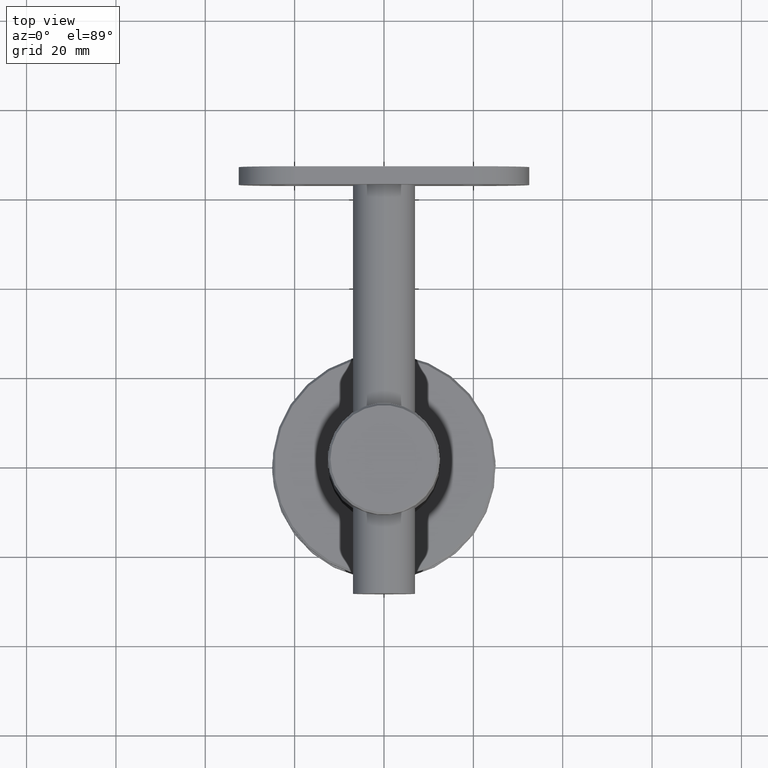
[diagram: clean part render]
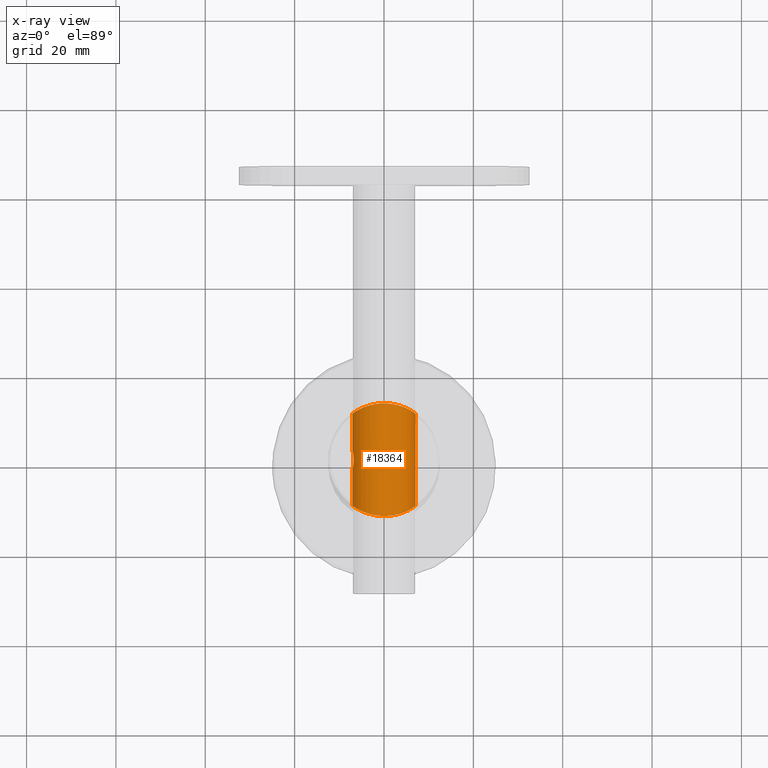
[diagram: x-ray — body ghosted, one internal face saturated and labeled with its STEP entity id]
A machine part, top view, then the same camera in x-ray: the body is ghosted and one INTERNAL B-rep face — a face not visible from any outside direction — is saturated and labeled: STEP entity #18364.
In plain terms, the highlighted cylindrical surface (bore or boss wall) has radius 7.1 mm, axis along (0, 1, 0).
Its self-contained STEP definition (entity closure, byte-faithful):
#28 = CARTESIAN_POINT ( 'NONE',  ( 3.184456486232198900, 12.09553283554605800, 86.36278829441432900 ) ) ;
#129 = CARTESIAN_POINT ( 'NONE',  ( 3.169272846726294300, -12.09956292198341800, 73.62956972911712200 ) ) ;
#163 = CARTESIAN_POINT ( 'NONE',  ( -1.853286471380417800, 12.37060092623068500, 73.12994769052774300 ) ) ;
#196 = CARTESIAN_POINT ( 'NONE',  ( -1.889983813216502100, -12.35839596780823000, 73.15212593721565800 ) ) ;
#223 = CARTESIAN_POINT ( 'NONE',  ( 6.460840631977733400, 10.70133156741372800, 77.04687974980271300 ) ) ;
#228 = CARTESIAN_POINT ( 'NONE',  ( -7.100012148261073200, -2.100041072693855000, 80.13780473094723800 ) ) ;
#291 = CARTESIAN_POINT ( 'NONE',  ( 3.203955867126915700, 12.09038730092472500, 73.64696696464356800 ) ) ;
#295 = CARTESIAN_POINT ( 'NONE',  ( -7.068625278274705400, -1.992006816820353300, 79.32091920459197400 ) ) ;
#325 = CARTESIAN_POINT ( 'NONE',  ( 0.9563567616744069700, -12.46562845003936800, 87.03933869854878900 ) ) ;
#353 = CARTESIAN_POINT ( 'NONE',  ( -6.460839592141698300, 10.70133331722410100, 82.95314374847103500 ) ) ;
#361 = CARTESIAN_POINT ( 'NONE',  ( -6.815154110500383700, 0.6797862604579225600, 78.00835110820875700 ) ) ;
#417 = CARTESIAN_POINT ( 'NONE',  ( -6.859185124894941600, 10.45057995091122500, 78.10713310867888000 ) ) ;
#424 = CARTESIAN_POINT ( 'NONE',  ( -7.039319135053911000, -1.885375750011311300, 79.06479939787233500 ) ) ;
#490 = CARTESIAN_POINT ( 'NONE',  ( -6.901481671827468700, -1.281792034622725600, 78.33095564020750600 ) ) ;
#757 = VERTEX_POINT ( 'NONE', #1304 ) ;
#825 = CARTESIAN_POINT ( 'NONE',  ( -6.782329983125269000, 0.0000000000000000000, 82.09999999999999400 ) ) ;
#1304 = CARTESIAN_POINT ( 'NONE',  ( 0.0000000000000000000, -12.49999999999999500, 87.09999999999999400 ) ) ;
#1523 = CARTESIAN_POINT ( 'NONE',  ( -6.360965238899706400, -10.76253835036409600, 83.18740120694651800 ) ) ;
#1567 = CARTESIAN_POINT ( 'NONE',  ( -6.845144131998220700, 0.9337493638819988100, 81.88600560181058100 ) ) ;
#1599 = CARTESIAN_POINT ( 'NONE',  ( 6.138928330866495000, -10.89252251643727800, 76.40402217390261800 ) ) ;
#1636 = CARTESIAN_POINT ( 'NONE',  ( -6.862828530676045700, 1.054039452433831000, 81.82147171845117800 ) ) ;
#1664 = CARTESIAN_POINT ( 'NONE',  ( -5.625106057332109400, -11.16396342920787900, 84.33819548883795400 ) ) ;
#1732 = CARTESIAN_POINT ( 'NONE',  ( -5.335835450798519700, -11.30507663162559200, 84.68941556034548100 ) ) ;
#1766 = CARTESIAN_POINT ( 'NONE',  ( -4.167489591241087000, 11.78650720189665800, 85.75274438239226500 ) ) ;
#1803 = CARTESIAN_POINT ( 'NONE',  ( 2.310420913900503400, -12.29250456500398400, 73.27031743588233300 ) ) ;
#1833 = CARTESIAN_POINT ( 'NONE',  ( -7.037625937007599800, 10.33066797645802700, 79.03146245814458800 ) ) ;
#1839 = CARTESIAN_POINT ( 'NONE',  ( -6.984222367492753500, -1.668758992133210200, 78.71788995133526600 ) ) ;
#1864 = CARTESIAN_POINT ( 'NONE',  ( 4.167489591241089600, -11.78650720189666100, 85.75274438239227900 ) ) ;
#1896 = CARTESIAN_POINT ( 'NONE',  ( -6.361636014312697500, 10.76083024765457300, 83.16111218485477300 ) ) ;
#1901 = CARTESIAN_POINT ( 'NONE',  ( -6.844861605190449600, -0.9316269468544697800, 78.11297791819363600 ) ) ;
#1930 = CARTESIAN_POINT ( 'NONE',  ( 4.703235346696010800, -11.58298069406304400, 85.32372804176564800 ) ) ;
#1960 = CARTESIAN_POINT ( 'NONE',  ( -5.328153462786819000, 11.30871037991073000, 75.30182161819441000 ) ) ;
#2027 = CARTESIAN_POINT ( 'NONE',  ( -6.023856308707189900, 10.95372243787466000, 83.76503293258986100 ) ) ;
#2032 = CARTESIAN_POINT ( 'NONE',  ( -6.845025548537427600, 0.9328229039679607500, 78.11357054255566400 ) ) ;
#2104 = CARTESIAN_POINT ( 'NONE',  ( -6.786640825994242100, -0.2769015917512484000, 82.08621758769935200 ) ) ;
#2136 = CARTESIAN_POINT ( 'NONE',  ( 6.718676569906835800, -10.54116355741437700, 82.30751951410998400 ) ) ;
#3030 = CARTESIAN_POINT ( 'NONE',  ( 4.704088486941905100, 11.58634715858313200, 85.33724871396501000 ) ) ;
#3138 = CARTESIAN_POINT ( 'NONE',  ( -6.868284871124011200, -10.44457344749546500, 78.14038418871585600 ) ) ;
#3206 = CARTESIAN_POINT ( 'NONE',  ( -5.762524363847187900, -11.09342687341460000, 84.15394023452493900 ) ) ;
#3314 = CARTESIAN_POINT ( 'NONE',  ( 0.4800627823512708700, 12.50000000000000900, 87.09999999999998000 ) ) ;
#3348 = CARTESIAN_POINT ( 'NONE',  ( -5.355958186748809500, -11.29981148896228900, 75.31711136074473200 ) ) ;
#3375 = CARTESIAN_POINT ( 'NONE',  ( -7.099407664463041300, 10.28826570890215400, 79.74334127595248800 ) ) ;
#3381 = CARTESIAN_POINT ( 'NONE',  ( -6.922427031916429400, 1.388825506137059800, 81.58104260893722400 ) ) ;
#3411 = CARTESIAN_POINT ( 'NONE',  ( 6.859185124894938000, -10.45057995091122300, 78.10713310867888000 ) ) ;
#3441 = CARTESIAN_POINT ( 'NONE',  ( -3.600675860934234000, 11.97681173761797200, 86.13622710087231800 ) ) ;
#3475 = CARTESIAN_POINT ( 'NONE',  ( 5.641618946878534000, -11.15821024869228100, 84.33490563956949900 ) ) ;
#3512 = CARTESIAN_POINT ( 'NONE',  ( -1.880117477014193300, 12.35990056820642600, 86.85058647304826700 ) ) ;
#3517 = CARTESIAN_POINT ( 'NONE',  ( -7.022007560448678900, -1.820435298009179600, 78.94426420138614700 ) ) ;
#3580 = CARTESIAN_POINT ( 'NONE',  ( -3.575190798629518200, 11.98464729610662300, 73.84842911643902100 ) ) ;
#3617 = CARTESIAN_POINT ( 'NONE',  ( 6.023856308707191700, -10.95372243787465800, 83.76503293258987500 ) ) ;
#3646 = CARTESIAN_POINT ( 'NONE',  ( 5.355958186748810400, 11.29981148896229300, 75.31711136074470400 ) ) ;
#3651 = CARTESIAN_POINT ( 'NONE',  ( -6.862904813444911800, -1.054516017828586800, 78.17882020022176400 ) ) ;
#3723 = CARTESIAN_POINT ( 'NONE',  ( -6.782329983125269000, -9.486769009248163800E-017, 82.09999999999999400 ) ) ;
#4180 = DIRECTION ( 'NONE',  ( 0.0000000000000000000, 0.0000000000000000000, 1.000000000000000000 ) ) ;
#4316 = DIRECTION ( 'NONE',  ( -0.0000000000000000000, 1.000000000000000000, -0.0000000000000000000 ) ) ;
#4649 = CARTESIAN_POINT ( 'NONE',  ( 7.100939746325477300, 10.28720837068595800, 79.53372672903482500 ) ) ;
#4762 = CARTESIAN_POINT ( 'NONE',  ( 4.693911986042605700, -11.59050969572359200, 74.65372349926248300 ) ) ;
#4839 = CARTESIAN_POINT ( 'NONE',  ( 7.001530568193297600, -10.35528030401141400, 78.79837147415904000 ) ) ;
#4906 = CARTESIAN_POINT ( 'NONE',  ( -4.716523181865119900, -11.58129685567271300, 74.67363696498289000 ) ) ;
#4973 = CARTESIAN_POINT ( 'NONE',  ( 4.342869847070072200, -11.72830940716055200, 74.36410654168391000 ) ) ;
#5005 = CARTESIAN_POINT ( 'NONE',  ( -6.143396690811448100, 10.88689843328966600, 83.56675204116639600 ) ) ;
#5010 = CARTESIAN_POINT ( 'NONE',  ( -7.080168537428641600, 2.032107468005843300, 80.54744595523067100 ) ) ;
#5039 = CARTESIAN_POINT ( 'NONE',  ( -6.025128862940238000, -10.95302243981158300, 76.23699854062238000 ) ) ;
#5079 = CARTESIAN_POINT ( 'NONE',  ( 1.889983813216502100, 12.35839596780823300, 73.15212593721565800 ) ) ;
#5145 = CARTESIAN_POINT ( 'NONE',  ( -7.101124007438878400, 10.28708120721371300, 80.46248176011639000 ) ) ;
#5214 = CARTESIAN_POINT ( 'NONE',  ( -6.356607340930143100, 10.76513610372195600, 76.80371625946746400 ) ) ;
#5221 = CARTESIAN_POINT ( 'NONE',  ( -7.080330242912368500, -2.032668272943457800, 80.54524241719211400 ) ) ;
#5283 = CARTESIAN_POINT ( 'NONE',  ( -3.169272846726296500, 12.09956292198342500, 73.62956972911710800 ) ) ;
#5289 = CARTESIAN_POINT ( 'NONE',  ( -6.803021818836577400, -0.5470709807960408800, 82.03216427896745700 ) ) ;
#5324 = CARTESIAN_POINT ( 'NONE',  ( 6.143396690811446300, -10.88689843328965900, 83.56675204116636700 ) ) ;
#5366 = CARTESIAN_POINT ( 'NONE',  ( -7.099987796811094900, -2.099958741597745900, 79.86094628929859600 ) ) ;
#5997 = ORIENTED_EDGE ( 'NONE', *, *, #13673, .T. ) ;
#6291 = CARTESIAN_POINT ( 'NONE',  ( 6.360965238899708200, 10.76253835036409800, 83.18740120694651800 ) ) ;
#6374 = CARTESIAN_POINT ( 'NONE',  ( 3.588686174087187400, 11.98054828353597000, 86.14357688401587200 ) ) ;
#6379 = CARTESIAN_POINT ( 'NONE',  ( -6.782329983125269000, -9.486769009248163800E-017, 82.09999999999999400 ) ) ;
#6410 = CARTESIAN_POINT ( 'NONE',  ( -5.642930842882246400, -11.15754655068283600, 75.66678379310434400 ) ) ;
#6445 = CARTESIAN_POINT ( 'NONE',  ( -7.080227135845427200, 2.032309671876054000, 79.45349365603627200 ) ) ;
#6476 = CARTESIAN_POINT ( 'NONE',  ( 7.086570340510783200, -10.29715497009005700, 79.50324592782914100 ) ) ;
#6512 = CARTESIAN_POINT ( 'NONE',  ( -7.025011679384226300, 1.833352615866390200, 78.93922856770291200 ) ) ;
#6539 = CARTESIAN_POINT ( 'NONE',  ( -3.203955867126916600, -12.09038730092472300, 73.64696696464361000 ) ) ;
#6572 = CARTESIAN_POINT ( 'NONE',  ( -5.354227270072692900, 11.30066879763865200, 84.68499769419686600 ) ) ;
#6613 = CARTESIAN_POINT ( 'NONE',  ( -4.704088486941909500, -11.58634715858313100, 85.33724871396499600 ) ) ;
#6644 = CARTESIAN_POINT ( 'NONE',  ( 6.025128862940238000, 10.95302243981158900, 76.23699854062239500 ) ) ;
#6650 = CARTESIAN_POINT ( 'NONE',  ( -7.095936194997684700, 2.086380772200740800, 80.27599476229552500 ) ) ;
#6677 = CARTESIAN_POINT ( 'NONE',  ( -3.588686174087189200, -11.98054828353597200, 86.14357688401588600 ) ) ;
#6710 = CARTESIAN_POINT ( 'NONE',  ( -2.552512006404772400, 12.23860169328429000, 86.62942539281218000 ) ) ;
#6773 = CARTESIAN_POINT ( 'NONE',  ( 3.605539113816680400, 11.97534002329462400, 73.86663764570010900 ) ) ;
#6812 = CARTESIAN_POINT ( 'NONE',  ( 6.856596184691691900, -10.45197745669437200, 81.85805003137291200 ) ) ;
#6851 = CARTESIAN_POINT ( 'NONE',  ( 4.716523181865117200, 11.58129685567271500, 74.67363696498284800 ) ) ;
#6955 = CARTESIAN_POINT ( 'NONE',  ( 6.915009424120476900, -10.41324950567328300, 81.62736897290308500 ) ) ;
#7656 = ORIENTED_EDGE ( 'NONE', *, *, #18132, .T. ) ;
#7721 = B_SPLINE_CURVE_WITH_KNOTS ( 'NONE', 3,
 ( #15967, #3314, #9427, #20785, #19232, #28, #6374, #17691, #3030, #14354, #14280, #8111, #20720, #19164, #6291, #9570, #9640, #11247, #20650, #4649, #17482, #14565, #7823, #223, #11445, #8435, #6644, #13276, #3646, #6851, #8243, #6773, #291, #11507, #19371, #5079, #13211, #19434, #9774, #9847, #14832, #163, #8180, #5283, #3580, #10034, #17821, #19498, #1960, #19635, #9905, #17888, #5214, #11581, #417, #16438, #1833, #16244, #3375, #5145, #18013, #14639, #8375, #13144, #11649, #353, #1896, #5005, #2027, #14905, #6572, #17756, #13069, #11379, #1766, #3441, #14701, #6710, #13001, #3512, #16305, #17952, #8308, #14766, #16376, #19566 ),
 .UNSPECIFIED., .T., .F.,
 ( 4, 2, 2, 2, 2, 2, 2, 2, 2, 2, 2, 2, 2, 2, 2, 2, 2, 2, 2, 2, 2, 2, 2, 2, 2, 2, 2, 2, 2, 2, 2, 2, 2, 2, 2, 2, 2, 2, 2, 2, 2, 2, 4 ),
 ( 0.0000000000000000000, 0.001417821200762001300, 0.002835642401524002600, 0.004253463602286003900, 0.005671284803048006100, 0.006380195403429008900, 0.007089106003810008300, 0.008506927204572009600, 0.009924748405334008300, 0.01134256960609600900, 0.01276039080685800900, 0.01417821200762001000, 0.01488712260800102500, 0.01559603320838204300, 0.01701385440914408200, 0.01843167560990611700, 0.01984949681066815200, 0.02055840741104917800, 0.02126731801143020400, 0.02268513921219226700, 0.02410296041295432700, 0.02552078161371639300, 0.02693860281447845200, 0.02835642401524051200, 0.02906533461562153100, 0.02977424521600254700, 0.03119206641676460600, 0.03260988761752667300, 0.03331879821790768200, 0.03402770881828869100, 0.03544553001905066700, 0.03615444061943166200, 0.03686335121981265700, 0.03757226182019364500, 0.03828117242057463300, 0.03969899362133665100, 0.04040790422171763900, 0.04111681482209863400, 0.04253463602286063800, 0.04324354662324163300, 0.04395245722362262800, 0.04466136782400362300, 0.04537027842438462500 ),
 .UNSPECIFIED. ) ;
#7823 = CARTESIAN_POINT ( 'NONE',  ( 6.728327433932026500, 10.53676638689296600, 77.68631603766708300 ) ) ;
#8004 = CARTESIAN_POINT ( 'NONE',  ( 5.756534759608706900, -11.09653907833739300, 75.83776719106902000 ) ) ;
#8075 = CARTESIAN_POINT ( 'NONE',  ( 5.618916498746309600, -11.16709125779064800, 75.65375140950391100 ) ) ;
#8111 = CARTESIAN_POINT ( 'NONE',  ( 5.625106057332099700, 11.16396342920788200, 84.33819548883796800 ) ) ;
#8147 = CARTESIAN_POINT ( 'NONE',  ( -1.662763347459026900, -12.39107304167199400, 73.09346473338199200 ) ) ;
#8180 = CARTESIAN_POINT ( 'NONE',  ( -2.310420913900503900, 12.29250456500398600, 73.27031743588234700 ) ) ;
#8185 = CARTESIAN_POINT ( 'NONE',  ( -6.901460717921716900, 1.281695660772273600, 81.66913589068170200 ) ) ;
#8211 = CARTESIAN_POINT ( 'NONE',  ( -2.328163915045303100, -12.28911430792146800, 86.72350286509373500 ) ) ;
#8243 = CARTESIAN_POINT ( 'NONE',  ( 4.360704997454968500, 11.72147315400053800, 74.37840787716004300 ) ) ;
#8275 = CARTESIAN_POINT ( 'NONE',  ( -6.144291566700927900, -10.88638881761785300, 76.43483257053729600 ) ) ;
#8308 = CARTESIAN_POINT ( 'NONE',  ( -0.9563567616744034200, 12.46562845003937300, 87.03933869854881800 ) ) ;
#8375 = CARTESIAN_POINT ( 'NONE',  ( -6.856596184691688300, 10.45197745669436900, 81.85805003137291200 ) ) ;
#8381 = CARTESIAN_POINT ( 'NONE',  ( -6.984398384501084900, 1.678602553536193500, 78.70869074257588200 ) ) ;
#8407 = CARTESIAN_POINT ( 'NONE',  ( 4.350185171942295700, -11.72014306462431100, 85.61590526619762900 ) ) ;
#8435 = CARTESIAN_POINT ( 'NONE',  ( 6.144291566700926100, 10.88638881761785400, 76.43483257053731000 ) ) ;
#8471 = CARTESIAN_POINT ( 'NONE',  ( 0.4817035191452519500, -12.49297693224775000, 87.08765612089989400 ) ) ;
#8504 = CARTESIAN_POINT ( 'NONE',  ( -6.786669186077234400, 0.2778081737557134800, 77.91387212255020200 ) ) ;
#8534 = CARTESIAN_POINT ( 'NONE',  ( -3.523657060577889400E-016, -12.49999999999999300, 87.10000000000000900 ) ) ;
#9427 = CARTESIAN_POINT ( 'NONE',  ( 0.9502310381377845300, 12.47246097537638400, 87.05182805586086700 ) ) ;
#9500 = CARTESIAN_POINT ( 'NONE',  ( -7.099973389949184400, 2.099910032668056600, 80.13920638788565000 ) ) ;
#9570 = CARTESIAN_POINT ( 'NONE',  ( 6.718937078870830200, 10.54276979942761500, 82.34036103084744700 ) ) ;
#9611 = CARTESIAN_POINT ( 'NONE',  ( 0.4559300718457330300, -12.50090470285381400, 72.89840720695660500 ) ) ;
#9640 = CARTESIAN_POINT ( 'NONE',  ( 6.860853880118836100, 10.44947904693423300, 81.88678518319302700 ) ) ;
#9678 = CARTESIAN_POINT ( 'NONE',  ( 7.101124007438881900, -10.28708120721371700, 80.46248176011640400 ) ) ;
#9742 = CARTESIAN_POINT ( 'NONE',  ( 0.9286070184467023500, -12.47413832801099400, 72.94521591505608200 ) ) ;
#9774 = CARTESIAN_POINT ( 'NONE',  ( 0.5042569077676455300, 12.49904858744114800, 72.90167502860092000 ) ) ;
#9810 = CARTESIAN_POINT ( 'NONE',  ( -6.144214611907535200, -10.88952956567641000, 83.58695593317949600 ) ) ;
#9847 = CARTESIAN_POINT ( 'NONE',  ( -0.4559300718457330900, 12.50090470285381800, 72.89840720695659100 ) ) ;
#9852 = CARTESIAN_POINT ( 'NONE',  ( -6.963506826189996200, -1.580948237789726400, 78.61097943035122200 ) ) ;
#9905 = CARTESIAN_POINT ( 'NONE',  ( -5.756534759608702400, 11.09653907833739200, 75.83776719106900500 ) ) ;
#10004 = CARTESIAN_POINT ( 'NONE',  ( 6.639358407684966300, -10.59150144861526900, 82.52634640713077400 ) ) ;
#10034 = CARTESIAN_POINT ( 'NONE',  ( -4.342869847070072200, 11.72830940716054800, 74.36410654168396700 ) ) ;
#10039 = CARTESIAN_POINT ( 'NONE',  ( -6.922196061172677200, 1.387721061360569700, 78.41790430484812200 ) ) ;
#10112 = CARTESIAN_POINT ( 'NONE',  ( -6.800103364420360600, -0.5519051208141820800, 77.95536674219060600 ) ) ;
#10142 = CARTESIAN_POINT ( 'NONE',  ( 6.361636014312694900, -10.76083024765457300, 83.16111218485477300 ) ) ;
#10540 = B_SPLINE_CURVE_WITH_KNOTS ( 'NONE', 3,
 ( #6379, #17555, #17826, #17761, #13007, #1567, #1636, #8185, #3381, #12870, #14501, #14644, #5010, #6650, #9500, #14432, #12796, #6445, #17696, #6512, #8381, #10039, #14838, #18090, #2032, #361, #16310, #8504, #19705, #11719, #10112, #1901, #3651, #490, #18019, #9852, #1839, #3517, #424, #295, #14770, #17956, #5366, #228, #13215, #5221, #11513, #11655, #14978, #11587, #13283, #13360, #19642, #14911, #5289, #2104, #16444, #3723 ),
 .UNSPECIFIED., .T., .F.,
 ( 4, 2, 2, 2, 2, 2, 2, 2, 2, 2, 2, 2, 2, 2, 2, 2, 2, 2, 2, 2, 2, 2, 2, 2, 2, 2, 2, 2, 4 ),
 ( 0.0000000000000000000, 0.0004126049983607103500, 0.0008252099967214207100, 0.001237814995082131100, 0.001650419993442841400, 0.002475629990164292200, 0.002888234988525017400, 0.003300839986885742300, 0.003713444985246467100, 0.004126049983607191900, 0.004951259980328640700, 0.005363864978689366000, 0.005776469977050090400, 0.006189074975410814800, 0.006601679973771538300, 0.007426889970492987100, 0.007839494968853720100, 0.008252099967214451500, 0.008664704965575184500, 0.009077309963935915900, 0.009489914962296649000, 0.009902519960657380300, 0.01031512495901811300, 0.01072772995737884600, 0.01155293995410027300, 0.01196554495246098500, 0.01237814995082169900, 0.01279075494918241100, 0.01320335994754312700 ),
 .UNSPECIFIED. ) ;
#10578 = CARTESIAN_POINT ( 'NONE',  ( 0.0000000000000000000, -25.00000000000000000, 80.00000000000000000 ) ) ;
#10586 = FACE_BOUND ( 'NONE', #16701, .T. ) ;
#11151 = CARTESIAN_POINT ( 'NONE',  ( -7.100939746325477300, -10.28720837068595800, 79.53372672903482500 ) ) ;
#11218 = CARTESIAN_POINT ( 'NONE',  ( -4.352464271525047200, -11.72468594015717100, 85.62834435256026200 ) ) ;
#11247 = CARTESIAN_POINT ( 'NONE',  ( 7.049804425350002300, 10.32294463227303900, 80.96515897974055100 ) ) ;
#11281 = CARTESIAN_POINT ( 'NONE',  ( -0.9502310381377858700, -12.47246097537638400, 87.05182805586086700 ) ) ;
#11379 = CARTESIAN_POINT ( 'NONE',  ( -4.350185171942293000, 11.72014306462431000, 85.61590526619761500 ) ) ;
#11412 = CARTESIAN_POINT ( 'NONE',  ( -2.561768883189977400, -12.23664740688127700, 73.37418452748443100 ) ) ;
#11445 = CARTESIAN_POINT ( 'NONE',  ( 6.361835953135452500, 10.76070739544479300, 76.83933852459222200 ) ) ;
#11507 = CARTESIAN_POINT ( 'NONE',  ( 2.561768883189979200, 12.23664740688127500, 73.37418452748443100 ) ) ;
#11513 = CARTESIAN_POINT ( 'NONE',  ( -7.068582600874122200, -1.991837313649669400, 80.67923718489723200 ) ) ;
#11571 = FACE_OUTER_BOUND ( 'NONE', #11670, .T. ) ;
#11581 = CARTESIAN_POINT ( 'NONE',  ( -6.716677798686967000, 10.54423309525403600, 77.65288986509251900 ) ) ;
#11587 = CARTESIAN_POINT ( 'NONE',  ( -6.922504623154175400, -1.389211259960196500, 81.58070502027477700 ) ) ;
#11649 = CARTESIAN_POINT ( 'NONE',  ( -6.639358407684963700, 10.59150144861526100, 82.52634640713076000 ) ) ;
#11655 = CARTESIAN_POINT ( 'NONE',  ( -7.025216620455511300, -1.834091644109289200, 81.05887864771446500 ) ) ;
#11670 = EDGE_LOOP ( 'NONE', ( #7656 ) ) ;
#11682 = CARTESIAN_POINT ( 'NONE',  ( 2.329605151280716800, -12.28311538749230200, 86.71105927489931300 ) ) ;
#11719 = CARTESIAN_POINT ( 'NONE',  ( -6.782293266518073500, -0.2741545567685147500, 77.89988141706125200 ) ) ;
#12757 = CARTESIAN_POINT ( 'NONE',  ( -6.718937078870830200, -10.54276979942761200, 82.34036103084744700 ) ) ;
#12796 = CARTESIAN_POINT ( 'NONE',  ( -7.095902045785402700, 2.086262723297444200, 79.72348664449417300 ) ) ;
#12828 = CARTESIAN_POINT ( 'NONE',  ( -7.053651354597871400, -10.32029331651082200, 79.06324464011741800 ) ) ;
#12870 = CARTESIAN_POINT ( 'NONE',  ( -6.984189384111908300, 1.677576361987595600, 81.29223280440783100 ) ) ;
#12901 = CARTESIAN_POINT ( 'NONE',  ( -7.049804425350002300, -10.32294463227304100, 80.96515897974057900 ) ) ;
#12968 = CARTESIAN_POINT ( 'NONE',  ( -6.860853880118836100, -10.44947904693423100, 81.88678518319302700 ) ) ;
#13001 = CARTESIAN_POINT ( 'NONE',  ( -2.329605151280716800, 12.28311538749230200, 86.71105927489931300 ) ) ;
#13007 = CARTESIAN_POINT ( 'NONE',  ( -6.815154023665759700, 0.6798632605222576500, 81.99165532951938900 ) ) ;
#13038 = CARTESIAN_POINT ( 'NONE',  ( 5.175251503206552300, -11.37969477022132700, 75.13398084494915000 ) ) ;
#13069 = CARTESIAN_POINT ( 'NONE',  ( -4.703235346696010000, 11.58298069406303900, 85.32372804176566200 ) ) ;
#13080 = VERTEX_POINT ( 'NONE', #825 ) ;
#13096 = FACE_OUTER_BOUND ( 'NONE', #17114, .T. ) ;
#13111 = CARTESIAN_POINT ( 'NONE',  ( 3.600675860934234000, -11.97681173761797200, 86.13622710087233300 ) ) ;
#13144 = CARTESIAN_POINT ( 'NONE',  ( -6.718676569906834900, 10.54116355741437700, 82.30751951410997000 ) ) ;
#13177 = CARTESIAN_POINT ( 'NONE',  ( 2.552512006404772400, -12.23860169328429000, 86.62942539281218000 ) ) ;
#13211 = CARTESIAN_POINT ( 'NONE',  ( 1.662763347459024000, 12.39107304167199600, 73.09346473338197800 ) ) ;
#13215 = CARTESIAN_POINT ( 'NONE',  ( -7.095979874710622900, -2.086526860941310800, 80.27465480135414600 ) ) ;
#13276 = CARTESIAN_POINT ( 'NONE',  ( 5.642930842882249100, 11.15754655068284000, 75.66678379310440100 ) ) ;
#13283 = CARTESIAN_POINT ( 'NONE',  ( -6.901553104244090500, -1.282197196202733200, 81.66875749540859900 ) ) ;
#13360 = CARTESIAN_POINT ( 'NONE',  ( -6.862889578469284000, -1.054441921355176800, 81.82124503099424800 ) ) ;
#13673 = EDGE_CURVE ( 'NONE', #13080, #13080, #10540, .T. ) ;
#14280 = CARTESIAN_POINT ( 'NONE',  ( 5.335835450798510000, 11.30507663162559800, 84.68941556034549500 ) ) ;
#14354 = CARTESIAN_POINT ( 'NONE',  ( 5.183621414992734000, 11.37587540671378300, 84.85708113046858600 ) ) ;
#14395 = CARTESIAN_POINT ( 'NONE',  ( -4.360704997454967600, -11.72147315400054200, 74.37840787716005800 ) ) ;
#14432 = CARTESIAN_POINT ( 'NONE',  ( -7.100026348053462200, 2.100089081531272900, 79.86352138130365600 ) ) ;
#14463 = CARTESIAN_POINT ( 'NONE',  ( 6.356607340930142200, -10.76513610372195400, 76.80371625946746400 ) ) ;
#14501 = CARTESIAN_POINT ( 'NONE',  ( -7.025138138096719900, 1.833784230723154000, 81.05923147149512400 ) ) ;
#14531 = CARTESIAN_POINT ( 'NONE',  ( -6.728327433932022900, -10.53676638689296600, 77.68631603766704100 ) ) ;
#14565 = CARTESIAN_POINT ( 'NONE',  ( 6.868284871124011200, 10.44457344749546500, 78.14038418871585600 ) ) ;
#14601 = CARTESIAN_POINT ( 'NONE',  ( 3.575190798629522600, -11.98464729610662800, 73.84842911643905000 ) ) ;
#14639 = CARTESIAN_POINT ( 'NONE',  ( -6.915009424120472500, 10.41324950567328100, 81.62736897290307100 ) ) ;
#14644 = CARTESIAN_POINT ( 'NONE',  ( -7.068441622166317600, 1.991335394239306800, 80.68063744123676900 ) ) ;
#14669 = CARTESIAN_POINT ( 'NONE',  ( 1.853286471380416900, -12.37060092623069200, 73.12994769052775700 ) ) ;
#14701 = CARTESIAN_POINT ( 'NONE',  ( -3.198048903789800800, 12.09203204625984400, 86.35616846345202200 ) ) ;
#14736 = CARTESIAN_POINT ( 'NONE',  ( 1.652301775859467600, -12.39249494266610600, 86.90908524717154600 ) ) ;
#14741 = AXIS2_PLACEMENT_3D ( 'NONE', #10578, #4316, #4180 ) ;
#14766 = CARTESIAN_POINT ( 'NONE',  ( -0.4817035191452535600, 12.49297693224775000, 87.08765612089992200 ) ) ;
#14770 = CARTESIAN_POINT ( 'NONE',  ( -7.080125291145912500, -2.031955190868508100, 79.45227603742151200 ) ) ;
#14832 = CARTESIAN_POINT ( 'NONE',  ( -0.9286070184467031300, 12.47413832801099100, 72.94521591505606800 ) ) ;
#14838 = CARTESIAN_POINT ( 'NONE',  ( -6.901626495669850300, 1.282551141199091100, 78.33155777678544500 ) ) ;
#14905 = CARTESIAN_POINT ( 'NONE',  ( -5.641618946878540300, 11.15821024869227400, 84.33490563956949900 ) ) ;
#14911 = CARTESIAN_POINT ( 'NONE',  ( -6.815287221516177500, -0.6811291103105851000, 81.99119703556324600 ) ) ;
#14942 = CARTESIAN_POINT ( 'NONE',  ( 3.198048903789800800, -12.09203204625984400, 86.35616846345202200 ) ) ;
#14978 = CARTESIAN_POINT ( 'NONE',  ( -6.984273363899498000, -1.677922849988365800, 81.29178947711110900 ) ) ;
#15760 = EDGE_CURVE ( 'NONE', #18059, #18059, #7721, .T. ) ;
#15967 = CARTESIAN_POINT ( 'NONE',  ( 1.626303258728256700E-016, 12.50000000000000900, 87.09999999999999400 ) ) ;
#16010 = CARTESIAN_POINT ( 'NONE',  ( -1.872139394921788600, -12.36771263791769500, 86.86486067165593300 ) ) ;
#16075 = CARTESIAN_POINT ( 'NONE',  ( 5.328153462786819000, -11.30871037991072600, 75.30182161819438100 ) ) ;
#16145 = CARTESIAN_POINT ( 'NONE',  ( -3.605539113816680800, -11.97534002329462800, 73.86663764570012300 ) ) ;
#16213 = CARTESIAN_POINT ( 'NONE',  ( -0.4800627823512705300, -12.49999999999999600, 87.09999999999998000 ) ) ;
#16244 = CARTESIAN_POINT ( 'NONE',  ( -7.086570340510785800, 10.29715497009006100, 79.50324592782914100 ) ) ;
#16276 = CARTESIAN_POINT ( 'NONE',  ( -6.361835953135453400, -10.76070739544479300, 76.83933852459222200 ) ) ;
#16305 = CARTESIAN_POINT ( 'NONE',  ( -1.652301775859467400, 12.39249494266610100, 86.90908524717156100 ) ) ;
#16310 = CARTESIAN_POINT ( 'NONE',  ( -6.803156909013575100, 0.5488557814347441200, 77.96828539561673200 ) ) ;
#16376 = CARTESIAN_POINT ( 'NONE',  ( -0.2400313911756351600, 12.50000000000000900, 87.09999999999999400 ) ) ;
#16410 = CARTESIAN_POINT ( 'NONE',  ( 4.872955847900103200, -11.51238539737940400, 85.16875609484240800 ) ) ;
#16438 = CARTESIAN_POINT ( 'NONE',  ( -7.001530568193298400, 10.35528030401141600, 78.79837147415901200 ) ) ;
#16444 = CARTESIAN_POINT ( 'NONE',  ( -6.782329983125271700, -0.1395805940375227600, 82.10000000000000900 ) ) ;
#16472 = CARTESIAN_POINT ( 'NONE',  ( 6.460839592141696600, -10.70133331722410500, 82.95314374847106400 ) ) ;
#16534 = CARTESIAN_POINT ( 'NONE',  ( 1.880117477014193300, -12.35990056820642600, 86.85058647304826700 ) ) ;
#16701 = EDGE_LOOP ( 'NONE', ( #5997 ) ) ;
#17114 = EDGE_LOOP ( 'NONE', ( #18357 ) ) ;
#17299 = CARTESIAN_POINT ( 'NONE',  ( 0.0000000000000000000, 12.50000000000000900, 87.09999999999999400 ) ) ;
#17482 = CARTESIAN_POINT ( 'NONE',  ( 7.053651354597871400, 10.32029331651082200, 79.06324464011741800 ) ) ;
#17555 = CARTESIAN_POINT ( 'NONE',  ( -6.782329983125267200, 0.1395805940375211300, 82.09999999999998000 ) ) ;
#17588 = CARTESIAN_POINT ( 'NONE',  ( -0.5042569077676458700, -12.49904858744115200, 72.90167502860092000 ) ) ;
#17662 = CARTESIAN_POINT ( 'NONE',  ( 7.099407664463043100, -10.28826570890215900, 79.74334127595248800 ) ) ;
#17691 = CARTESIAN_POINT ( 'NONE',  ( 4.352464271525046300, 11.72468594015717100, 85.62834435256026200 ) ) ;
#17696 = CARTESIAN_POINT ( 'NONE',  ( -7.068737760408320800, 1.992398480494621300, 79.32217055512235500 ) ) ;
#17725 = CARTESIAN_POINT ( 'NONE',  ( -2.339435591207807100, -12.28124712014009600, 73.29235815591162900 ) ) ;
#17756 = CARTESIAN_POINT ( 'NONE',  ( -4.872955847900104900, 11.51238539737940100, 85.16875609484242200 ) ) ;
#17761 = CARTESIAN_POINT ( 'NONE',  ( -6.802950190174099600, 0.5460881874451503100, 82.03240237488822100 ) ) ;
#17788 = CARTESIAN_POINT ( 'NONE',  ( 6.716677798686966100, -10.54423309525403800, 77.65288986509250400 ) ) ;
#17821 = CARTESIAN_POINT ( 'NONE',  ( -4.693911986042607500, 11.59050969572359500, 74.65372349926244100 ) ) ;
#17826 = CARTESIAN_POINT ( 'NONE',  ( -6.786638429700330400, 0.2766625995010880700, 82.08622374829639100 ) ) ;
#17856 = CARTESIAN_POINT ( 'NONE',  ( -3.184456486232202000, -12.09553283554605900, 86.36278829441434400 ) ) ;
#17888 = CARTESIAN_POINT ( 'NONE',  ( -6.138928330866495900, 10.89252251643727700, 76.40402217390263200 ) ) ;
#17920 = CARTESIAN_POINT ( 'NONE',  ( 1.190421084666685800, -12.44535775715966400, 87.00346041270835000 ) ) ;
#17952 = CARTESIAN_POINT ( 'NONE',  ( -1.190421084666685800, 12.44535775715966800, 87.00346041270837800 ) ) ;
#17956 = CARTESIAN_POINT ( 'NONE',  ( -7.095814792507050100, -2.085966281830894600, 79.72145358026939700 ) ) ;
#17984 = CARTESIAN_POINT ( 'NONE',  ( 7.054202409483235800, -10.31991815754176800, 80.93325709459465100 ) ) ;
#18013 = CARTESIAN_POINT ( 'NONE',  ( -7.054202409483233200, 10.31991815754175500, 80.93325709459463700 ) ) ;
#18019 = CARTESIAN_POINT ( 'NONE',  ( -6.922061004247122900, -1.387046703861995800, 78.41731970544162800 ) ) ;
#18059 = VERTEX_POINT ( 'NONE', #17299 ) ;
#18090 = CARTESIAN_POINT ( 'NONE',  ( -6.863097567920424200, 1.055744936456857600, 78.17954964057193500 ) ) ;
#18119 = CARTESIAN_POINT ( 'NONE',  ( 5.354227270072694700, -11.30066879763864500, 84.68499769419686600 ) ) ;
#18132 = EDGE_CURVE ( 'NONE', #757, #757, #20436, .T. ) ;
#18357 = ORIENTED_EDGE ( 'NONE', *, *, #15760, .T. ) ;
#18364 = ADVANCED_FACE ( 'NONE', ( #10586, #11571, #13096 ), #20347, .F. ) ;
#19164 = CARTESIAN_POINT ( 'NONE',  ( 6.144214611907544000, 10.88952956567640500, 83.58695593317942500 ) ) ;
#19202 = CARTESIAN_POINT ( 'NONE',  ( -6.460840631977733400, -10.70133156741373000, 77.04687974980271300 ) ) ;
#19232 = CARTESIAN_POINT ( 'NONE',  ( 2.328163915045302600, 12.28911430792146800, 86.72350286509372100 ) ) ;
#19266 = CARTESIAN_POINT ( 'NONE',  ( 7.037625937007606000, -10.33066797645803400, 79.03146245814461700 ) ) ;
#19336 = CARTESIAN_POINT ( 'NONE',  ( -3.523657060577889400E-016, -12.49999999999999300, 87.10000000000000900 ) ) ;
#19371 = CARTESIAN_POINT ( 'NONE',  ( 2.339435591207806600, 12.28124712014009400, 73.29235815591164300 ) ) ;
#19403 = CARTESIAN_POINT ( 'NONE',  ( -5.183621414992732200, -11.37587540671378200, 84.85708113046858600 ) ) ;
#19434 = CARTESIAN_POINT ( 'NONE',  ( 0.9736099433189137100, 12.47060447504791500, 72.95144489749591800 ) ) ;
#19466 = CARTESIAN_POINT ( 'NONE',  ( -0.9736099433189165900, -12.47060447504791700, 72.95144489749591800 ) ) ;
#19498 = CARTESIAN_POINT ( 'NONE',  ( -5.175251503206549600, 11.37969477022133100, 75.13398084494915000 ) ) ;
#19566 = CARTESIAN_POINT ( 'NONE',  ( 1.626303258728256700E-016, 12.50000000000000900, 87.09999999999999400 ) ) ;
#19601 = CARTESIAN_POINT ( 'NONE',  ( 0.2400313911756330200, -12.49999999999999300, 87.10000000000000900 ) ) ;
#19635 = CARTESIAN_POINT ( 'NONE',  ( -5.618916498746308700, 11.16709125779064000, 75.65375140950388300 ) ) ;
#19642 = CARTESIAN_POINT ( 'NONE',  ( -6.845222928990589000, -0.9342772076473223600, 81.88571699854966800 ) ) ;
#19705 = CARTESIAN_POINT ( 'NONE',  ( -6.782348432365521000, 0.1384375310246131200, 77.90005958516577800 ) ) ;
#20347 = CYLINDRICAL_SURFACE ( 'NONE', #14741, 7.099999999999995200 ) ;
#20436 = B_SPLINE_CURVE_WITH_KNOTS ( 'NONE', 3,
 ( #19336, #16213, #11281, #16010, #8211, #17856, #6677, #11218, #6613, #19403, #1732, #1664, #3206, #9810, #1523, #12757, #12968, #12901, #20752, #11151, #12828, #3138, #14531, #19202, #16276, #8275, #5039, #6410, #3348, #4906, #14395, #16145, #6539, #11412, #17725, #196, #8147, #19466, #17588, #9611, #9742, #14669, #1803, #129, #14601, #4973, #4762, #13038, #16075, #8075, #8004, #1599, #14463, #17788, #3411, #4839, #19266, #6476, #17662, #9678, #17984, #6955, #6812, #2136, #10004, #16472, #10142, #5324, #3617, #3475, #18119, #16410, #1930, #8407, #1864, #13111, #14942, #13177, #11682, #16534, #14736, #17920, #325, #8471, #19601, #8534 ),
 .UNSPECIFIED., .T., .F.,
 ( 4, 2, 2, 2, 2, 2, 2, 2, 2, 2, 2, 2, 2, 2, 2, 2, 2, 2, 2, 2, 2, 2, 2, 2, 2, 2, 2, 2, 2, 2, 2, 2, 2, 2, 2, 2, 2, 2, 2, 2, 2, 2, 4 ),
 ( 0.0000000000000000000, 0.001417821200762001500, 0.002835642401524003000, 0.004253463602286004800, 0.005671284803048006100, 0.006380195403429006300, 0.007089106003810005700, 0.008506927204572006100, 0.009924748405334006500, 0.01134256960609600700, 0.01276039080685800700, 0.01417821200762000600, 0.01488712260800102400, 0.01559603320838204300, 0.01701385440914407800, 0.01843167560990611700, 0.01984949681066815200, 0.02055840741104917800, 0.02126731801143020400, 0.02268513921219226700, 0.02410296041295432700, 0.02552078161371639300, 0.02693860281447845200, 0.02835642401524051500, 0.02906533461562153100, 0.02977424521600254700, 0.03119206641676461000, 0.03260988761752667300, 0.03331879821790768200, 0.03402770881828869100, 0.03544553001905067400, 0.03615444061943166200, 0.03686335121981265700, 0.03757226182019364500, 0.03828117242057464000, 0.03969899362133665100, 0.04040790422171763900, 0.04111681482209863400, 0.04253463602286063800, 0.04324354662324163300, 0.04395245722362263500, 0.04466136782400363000, 0.04537027842438462500 ),
 .UNSPECIFIED. ) ;
#20650 = CARTESIAN_POINT ( 'NONE',  ( 7.099032266065081300, 10.28852478386591500, 80.49446630777879400 ) ) ;
#20720 = CARTESIAN_POINT ( 'NONE',  ( 5.762524363847195900, 11.09342687341459800, 84.15394023452492400 ) ) ;
#20752 = CARTESIAN_POINT ( 'NONE',  ( -7.099032266065081300, -10.28852478386591500, 80.49446630777879400 ) ) ;
#20785 = CARTESIAN_POINT ( 'NONE',  ( 1.872139394921787500, 12.36771263791769100, 86.86486067165591900 ) ) ;